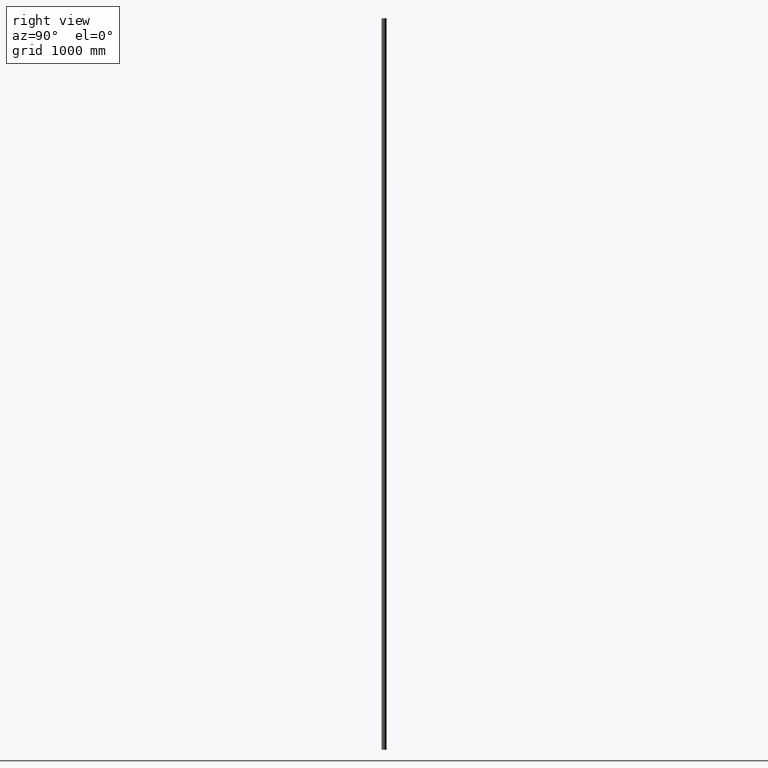
[diagram: clean part render]
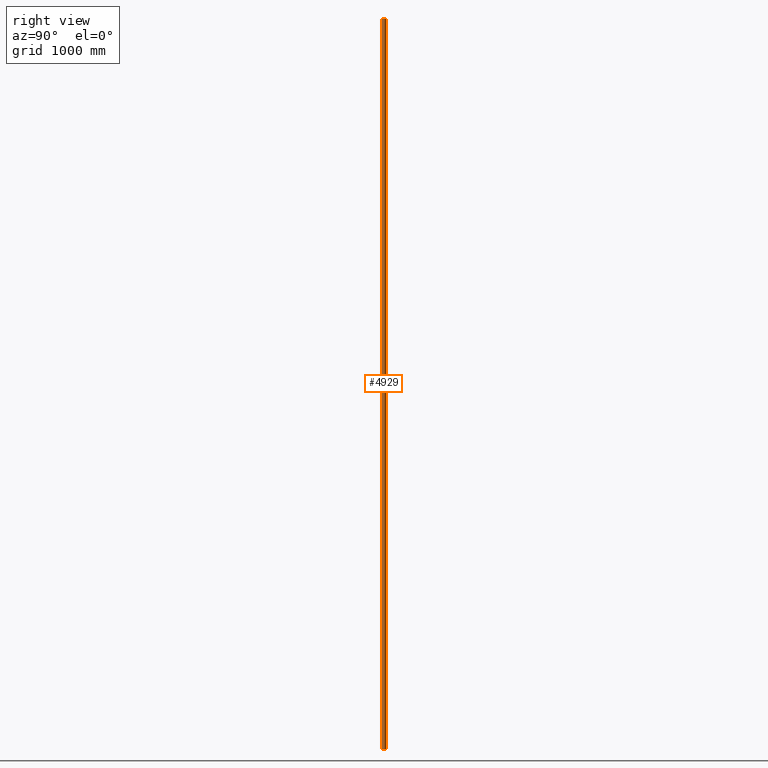
[diagram: same view with one face highlighted and labeled with its STEP entity id]
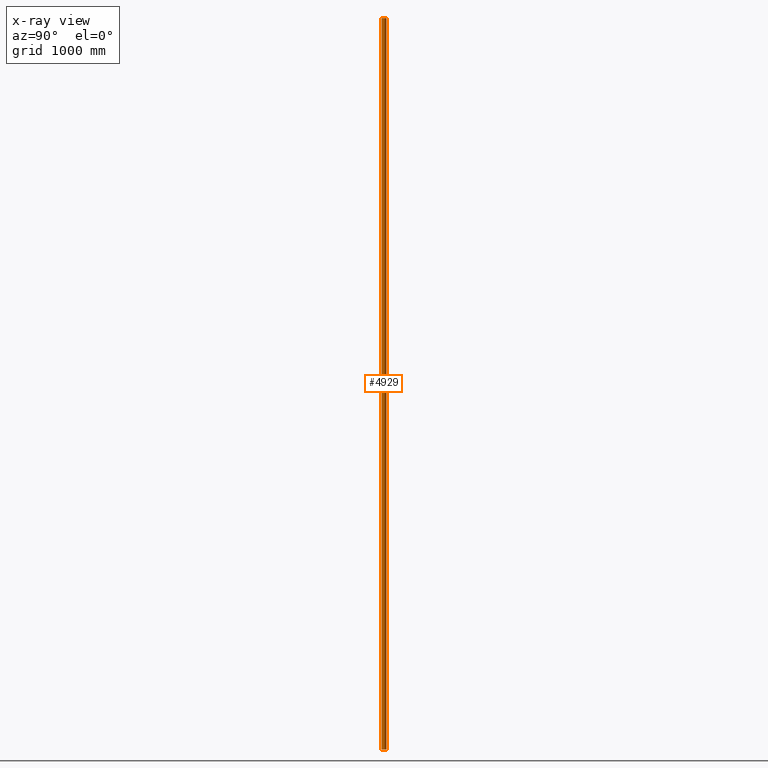
[diagram: x-ray of the same camera — body ghosted, the highlighted face saturated]
A machine part, right view. The second image highlights one B-rep face of the part: STEP entity #4929.
The next image is the same camera in x-ray: the body ghosted, the highlighted face saturated — about 0% of this face is hidden behind the body in this view.
In plain terms, the highlighted cylindrical surface (edge-blend (fillet) strip) has radius 24.15 mm, axis along (0, 0, 1).
Its self-contained STEP definition (entity closure, byte-faithful):
#302 = CARTESIAN_POINT ( 'NONE',  ( 1.045905862409840323E-15, 16.97122564813749790, -3000.000000000000000 ) ) ;
#394 = CARTESIAN_POINT ( 'NONE',  ( -16.89954853273139079, -0.2806658246795150635, -3000.000000000000000 ) ) ;
#747 = FACE_OUTER_BOUND ( 'NONE', #13896, .T. ) ;
#827 = DIRECTION ( 'NONE',  ( 0.000000000000000000, 0.000000000000000000, 1.000000000000000000 ) ) ;
#1133 = DIRECTION ( 'NONE',  ( 0.000000000000000000, 0.000000000000000000, 1.000000000000000000 ) ) ;
#1584 = ORIENTED_EDGE ( 'NONE', *, *, #1865, .T. ) ;
#1865 = EDGE_CURVE ( 'NONE', #11294, #10827, #2853, .T. ) ;
#1923 = DIRECTION ( 'NONE',  ( 1.000000000000000000, 0.000000000000000000, 0.000000000000000000 ) ) ;
#2853 = CIRCLE ( 'NONE', #7255, 24.15000000000000213 ) ;
#3131 = VECTOR ( 'NONE', #8568, 1000.000000000000000 ) ;
#3474 = CARTESIAN_POINT ( 'NONE',  ( 16.89954853273138013, -0.2806658246795221689, 3000.000000000000000 ) ) ;
#3595 = VERTEX_POINT ( 'NONE', #11458 ) ;
#3780 = AXIS2_PLACEMENT_3D ( 'NONE', #12441, #827, #1923 ) ;
#4001 = DIRECTION ( 'NONE',  ( 1.000000000000000000, 0.000000000000000000, 0.000000000000000000 ) ) ;
#4929 = ADVANCED_FACE ( 'NONE', ( #747 ), #6115, .T. ) ;
#5414 = CARTESIAN_POINT ( 'NONE',  ( 16.89954853273138013, -0.2806658246795221689, -3000.000000000000000 ) ) ;
#6115 = CYLINDRICAL_SURFACE ( 'NONE', #14127, 24.15000000000000213 ) ;
#6391 = EDGE_CURVE ( 'NONE', #10636, #3595, #10337, .T. ) ;
#6627 = LINE ( 'NONE', #13227, #3131 ) ;
#6639 = DIRECTION ( 'NONE',  ( 0.000000000000000000, 0.000000000000000000, 1.000000000000000000 ) ) ;
#7255 = AXIS2_PLACEMENT_3D ( 'NONE', #302, #14459, #4001 ) ;
#7449 = EDGE_CURVE ( 'NONE', #10827, #3595, #6627, .T. ) ;
#8568 = DIRECTION ( 'NONE',  ( 0.000000000000000000, 0.000000000000000000, 1.000000000000000000 ) ) ;
#8680 = LINE ( 'NONE', #5414, #11651 ) ;
#9034 = CARTESIAN_POINT ( 'NONE',  ( 1.045905862409840323E-15, 16.97122564813749790, -3000.000000000000000 ) ) ;
#10268 = EDGE_CURVE ( 'NONE', #11294, #10636, #8680, .T. ) ;
#10337 = CIRCLE ( 'NONE', #3780, 24.15000000000000213 ) ;
#10636 = VERTEX_POINT ( 'NONE', #3474 ) ;
#10827 = VERTEX_POINT ( 'NONE', #394 ) ;
#11294 = VERTEX_POINT ( 'NONE', #12288 ) ;
#11458 = CARTESIAN_POINT ( 'NONE',  ( -16.89954853273139079, -0.2806658246795150635, 3000.000000000000000 ) ) ;
#11651 = VECTOR ( 'NONE', #6639, 1000.000000000000000 ) ;
#12288 = CARTESIAN_POINT ( 'NONE',  ( 16.89954853273138013, -0.2806658246795221689, -3000.000000000000000 ) ) ;
#12359 = ORIENTED_EDGE ( 'NONE', *, *, #7449, .T. ) ;
#12441 = CARTESIAN_POINT ( 'NONE',  ( 1.045905862409840323E-15, 16.97122564813749790, 3000.000000000000000 ) ) ;
#13227 = CARTESIAN_POINT ( 'NONE',  ( -16.89954853273139079, -0.2806658246795150635, -3000.000000000000000 ) ) ;
#13587 = ORIENTED_EDGE ( 'NONE', *, *, #10268, .F. ) ;
#13896 = EDGE_LOOP ( 'NONE', ( #14832, #13587, #1584, #12359 ) ) ;
#13986 = DIRECTION ( 'NONE',  ( 1.000000000000000000, 0.000000000000000000, 0.000000000000000000 ) ) ;
#14127 = AXIS2_PLACEMENT_3D ( 'NONE', #9034, #1133, #13986 ) ;
#14459 = DIRECTION ( 'NONE',  ( 0.000000000000000000, 0.000000000000000000, 1.000000000000000000 ) ) ;
#14832 = ORIENTED_EDGE ( 'NONE', *, *, #6391, .F. ) ;